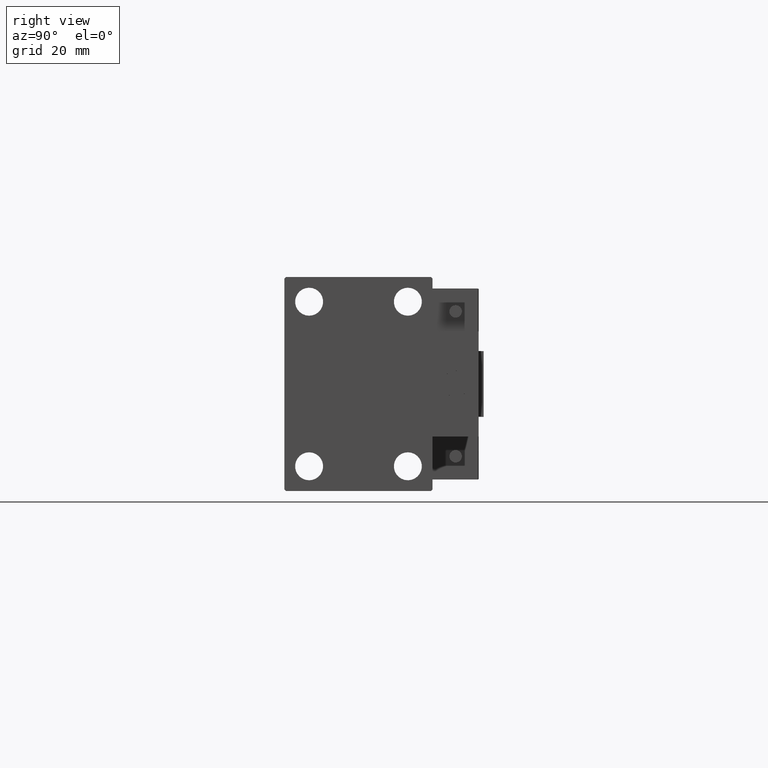
[diagram: clean part render]
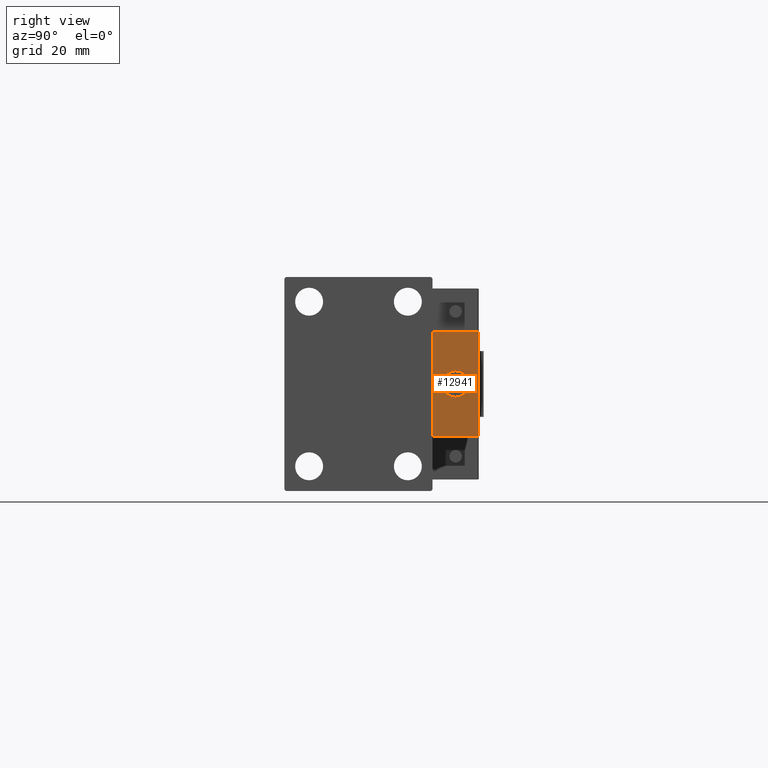
[diagram: same view with one face highlighted and labeled with its STEP entity id]
A machine part, right view. The second image highlights one B-rep face of the part: STEP entity #12941.
In plain terms, the highlighted planar face has unit normal (-1, 0, 0).
Its self-contained STEP definition (entity closure, byte-faithful):
#61 = PLANE ( 'NONE',  #48457 ) ;
#604 = ORIENTED_EDGE ( 'NONE', *, *, #14131, .T. ) ;
#681 = CIRCLE ( 'NONE', #16129, 4.000000000000000000 ) ;
#1423 = CARTESIAN_POINT ( 'NONE',  ( 10.00000000000000000, -7.000000000000000000, -16.00000000000000711 ) ) ;
#1972 = ORIENTED_EDGE ( 'NONE', *, *, #34531, .T. ) ;
#2055 = CARTESIAN_POINT ( 'NONE',  ( 10.00000000000000000, 7.000000000000000000, 15.99999999999999289 ) ) ;
#2168 = EDGE_CURVE ( 'NONE', #20720, #16407, #41171, .T. ) ;
#4317 = CARTESIAN_POINT ( 'NONE',  ( 10.00000000000000000, 7.000000000000000000, 15.99999999999999289 ) ) ;
#4620 = FACE_BOUND ( 'NONE', #8318, .T. ) ;
#5135 = DIRECTION ( 'NONE',  ( 0.000000000000000000, 0.000000000000000000, 1.000000000000000000 ) ) ;
#5936 = CARTESIAN_POINT ( 'NONE',  ( 10.00000000000000000, 7.000000000000000000, 15.99999999999999289 ) ) ;
#7045 = VECTOR ( 'NONE', #30029, 1000.000000000000000 ) ;
#7513 = ORIENTED_EDGE ( 'NONE', *, *, #27750, .T. ) ;
#8318 = EDGE_LOOP ( 'NONE', ( #30782, #1972 ) ) ;
#9156 = VERTEX_POINT ( 'NONE', #23550 ) ;
#9901 = CIRCLE ( 'NONE', #13989, 4.000000000000000000 ) ;
#9907 = CARTESIAN_POINT ( 'NONE',  ( 10.00000000000000000, 0.000000000000000000, 0.000000000000000000 ) ) ;
#10908 = EDGE_CURVE ( 'NONE', #38187, #9156, #681, .T. ) ;
#12941 = ADVANCED_FACE ( 'NONE', ( #4620, #16331 ), #61, .F. ) ;
#13989 = AXIS2_PLACEMENT_3D ( 'NONE', #27779, #43795, #5135 ) ;
#14131 = EDGE_CURVE ( 'NONE', #19274, #16407, #41490, .T. ) ;
#16129 = AXIS2_PLACEMENT_3D ( 'NONE', #9907, #25442, #21615 ) ;
#16331 = FACE_OUTER_BOUND ( 'NONE', #39278, .T. ) ;
#16407 = VERTEX_POINT ( 'NONE', #1423 ) ;
#17130 = VERTEX_POINT ( 'NONE', #5936 ) ;
#17878 = CARTESIAN_POINT ( 'NONE',  ( 10.00000000000000000, 0.000000000000000000, 4.000000000000000000 ) ) ;
#18434 = EDGE_CURVE ( 'NONE', #17130, #20720, #20914, .T. ) ;
#18519 = CARTESIAN_POINT ( 'NONE',  ( 10.00000000000000000, 7.000000000000000000, -16.00000000000000711 ) ) ;
#19274 = VERTEX_POINT ( 'NONE', #33995 ) ;
#19833 = DIRECTION ( 'NONE',  ( 0.000000000000000000, -1.000000000000000000, 0.000000000000000000 ) ) ;
#19932 = CARTESIAN_POINT ( 'NONE',  ( 10.00000000000000000, 7.000000000000000000, -16.00000000000000711 ) ) ;
#20138 = DIRECTION ( 'NONE',  ( -0.000000000000000000, 0.000000000000000000, 1.000000000000000000 ) ) ;
#20720 = VERTEX_POINT ( 'NONE', #19932 ) ;
#20914 = LINE ( 'NONE', #2055, #32210 ) ;
#21615 = DIRECTION ( 'NONE',  ( 0.000000000000000000, 0.000000000000000000, 1.000000000000000000 ) ) ;
#23550 = CARTESIAN_POINT ( 'NONE',  ( 10.00000000000000000, 4.898587196589412829E-16, -4.000000000000000000 ) ) ;
#25442 = DIRECTION ( 'NONE',  ( -1.000000000000000000, 0.000000000000000000, 0.000000000000000000 ) ) ;
#26978 = LINE ( 'NONE', #4317, #30953 ) ;
#27520 = DIRECTION ( 'NONE',  ( -1.000000000000000000, 0.000000000000000000, -0.000000000000000000 ) ) ;
#27750 = EDGE_CURVE ( 'NONE', #17130, #19274, #26978, .T. ) ;
#27779 = CARTESIAN_POINT ( 'NONE',  ( 10.00000000000000000, 0.000000000000000000, 0.000000000000000000 ) ) ;
#30029 = DIRECTION ( 'NONE',  ( 0.000000000000000000, 0.000000000000000000, -1.000000000000000000 ) ) ;
#30782 = ORIENTED_EDGE ( 'NONE', *, *, #10908, .T. ) ;
#30953 = VECTOR ( 'NONE', #19833, 1000.000000000000000 ) ;
#31839 = CARTESIAN_POINT ( 'NONE',  ( 10.00000000000000000, 0.000000000000000000, 0.000000000000000000 ) ) ;
#32210 = VECTOR ( 'NONE', #36678, 1000.000000000000000 ) ;
#33995 = CARTESIAN_POINT ( 'NONE',  ( 10.00000000000000000, -7.000000000000000000, 15.99999999999999289 ) ) ;
#34033 = DIRECTION ( 'NONE',  ( 0.000000000000000000, -1.000000000000000000, 0.000000000000000000 ) ) ;
#34531 = EDGE_CURVE ( 'NONE', #9156, #38187, #9901, .T. ) ;
#36678 = DIRECTION ( 'NONE',  ( 0.000000000000000000, 0.000000000000000000, -1.000000000000000000 ) ) ;
#38187 = VERTEX_POINT ( 'NONE', #17878 ) ;
#39278 = EDGE_LOOP ( 'NONE', ( #604, #45443, #43353, #7513 ) ) ;
#41171 = LINE ( 'NONE', #18519, #44384 ) ;
#41490 = LINE ( 'NONE', #49369, #7045 ) ;
#43353 = ORIENTED_EDGE ( 'NONE', *, *, #18434, .F. ) ;
#43795 = DIRECTION ( 'NONE',  ( -1.000000000000000000, 0.000000000000000000, 0.000000000000000000 ) ) ;
#44384 = VECTOR ( 'NONE', #34033, 1000.000000000000000 ) ;
#45443 = ORIENTED_EDGE ( 'NONE', *, *, #2168, .F. ) ;
#48457 = AXIS2_PLACEMENT_3D ( 'NONE', #31839, #27520, #20138 ) ;
#49369 = CARTESIAN_POINT ( 'NONE',  ( 10.00000000000000000, -7.000000000000000000, 15.99999999999999289 ) ) ;